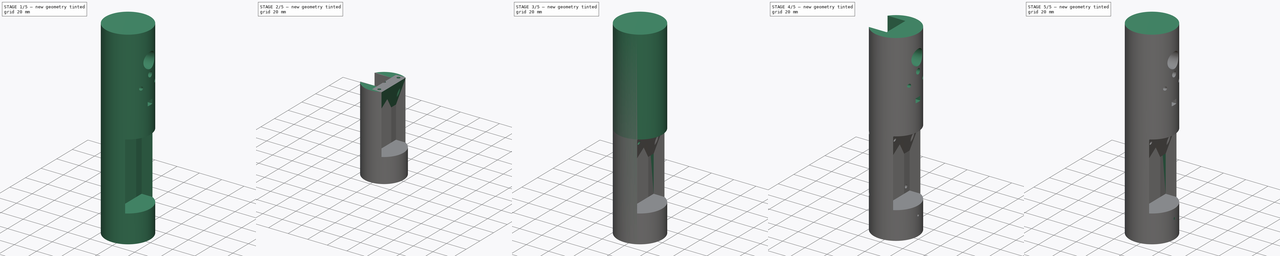
[diagram: build sequence overview — one tinted view per stage of 5, left to right]
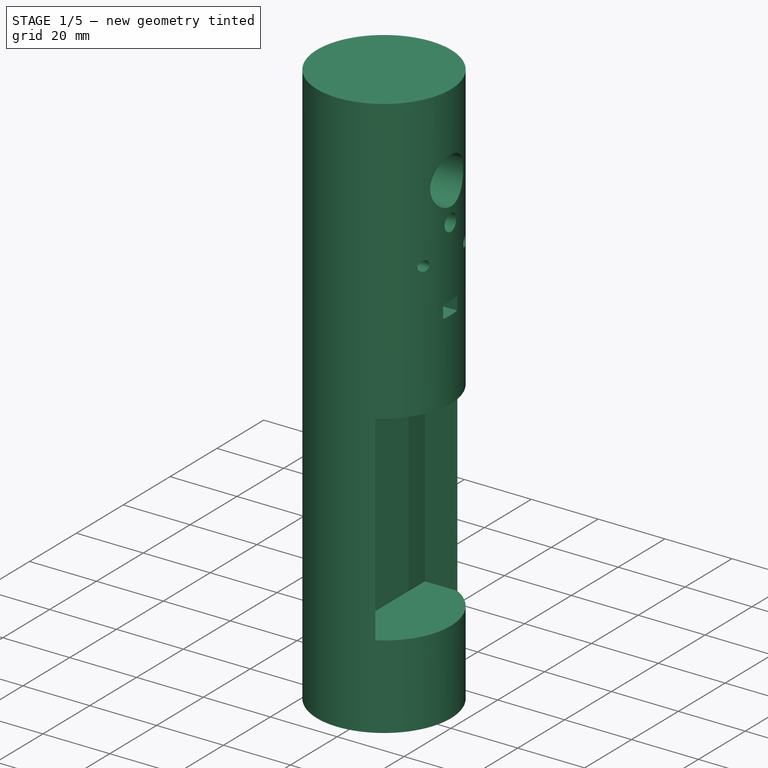
[diagram: stage 1 of 5 — iso view after this stage's code; geometry added in this stage tinted green]
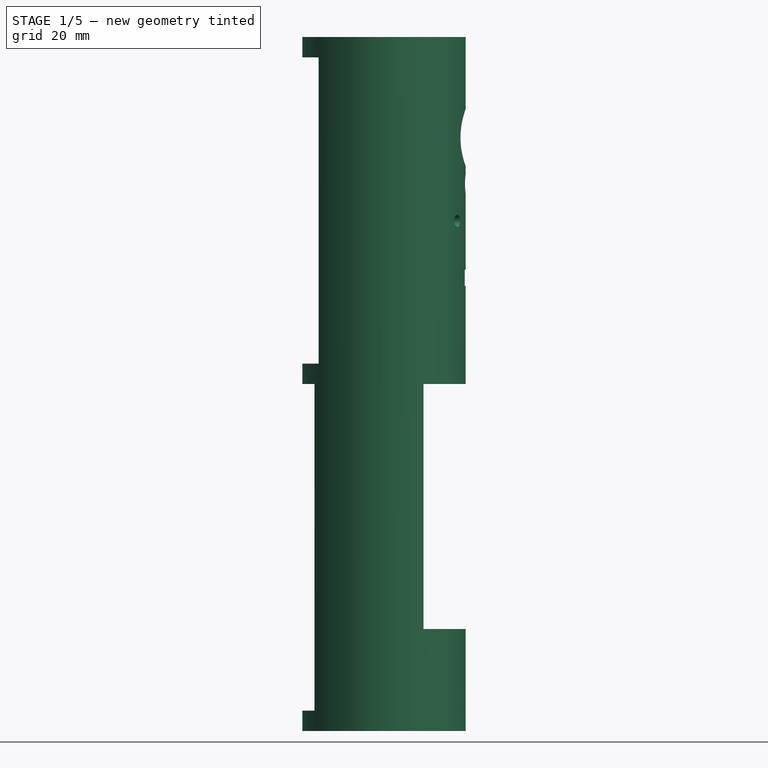
[diagram: stage 1 of 5 — front view after this stage's code; geometry added in this stage tinted green]
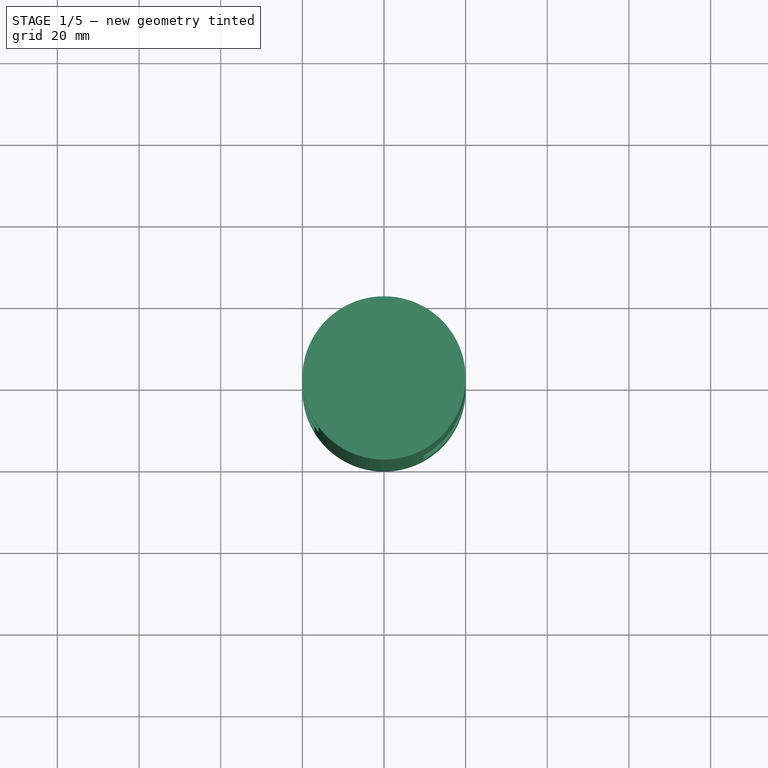
[diagram: stage 1 of 5 — top view after this stage's code; geometry added in this stage tinted green]
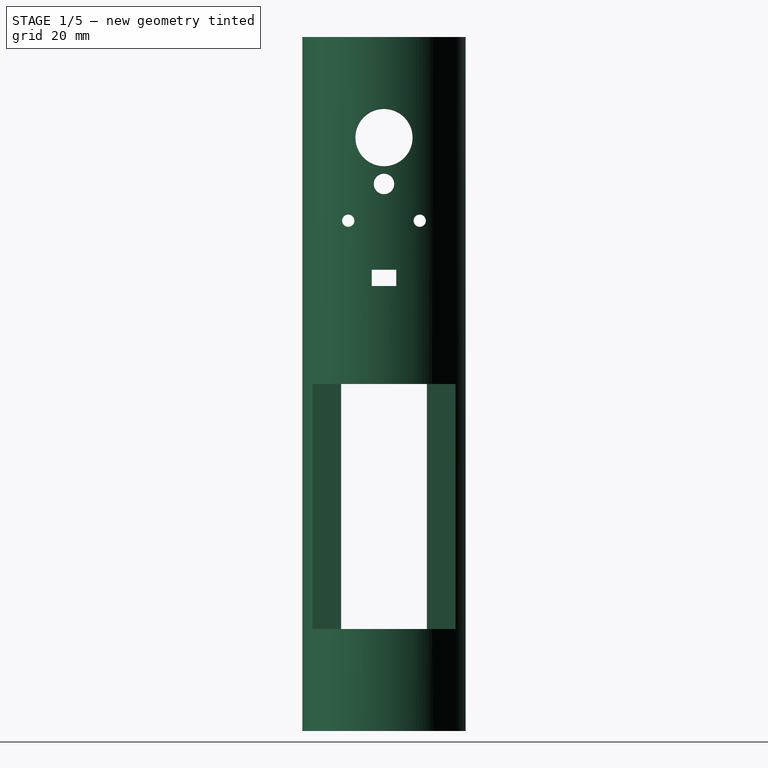
[diagram: stage 1 of 5 — right view after this stage's code; geometry added in this stage tinted green]
FCSTD DOCUMENT  (FreeCAD 0.18.4R)
Label: screwdriver_body
License: All rights reserved
LicenseURL: http://en.wikipedia.org/wiki/All_rights_reserved
objects: Sketcher::SketchObject×26, PartDesign::Pocket×19, PartDesign::Pad×4, PartDesign::Body×3
note: 75 computed .brp shape members not serialized (recipe doc carries the construction recipe); baked Part::Feature solids carry a one-line shape summary decoded from their .brp

FEATURE [PartDesign::Body] Body001  label="part-motor"
  Group = -> [Sketch006,Sketch007,Pad001,Sketch008,Pocket004,Sketch009,Pocket005,Sketch010,Pocket006,Sketch011,Pocket007,Sketch012,Pocket008,Sketch013,Pocket009]
  Origin = -> Origin001
  Tip = -> Pocket009
FEATURE [Sketcher::SketchObject] Sketch014  label="persegixy002"
  MapMode = 5
  Support = -> [XY_Plane002]
  sketch-geometry (4):
    g0: LineSegment StartX=-17.0798 StartY=8.27511 StartZ=0 EndX=17.0798 EndY=8.27511 EndZ=0
    g1: LineSegment StartX=17.0798 StartY=8.27511 StartZ=0 EndX=17.0798 EndY=-8.27511 EndZ=0
    g2: LineSegment StartX=17.0798 StartY=-8.27511 StartZ=0 EndX=-17.0798 EndY=-8.27511 EndZ=0
    g3: LineSegment StartX=-17.0798 StartY=-8.27511 StartZ=0 EndX=-17.0798 EndY=8.27511 EndZ=0
  constraints (8):
    c: Coincident(g0,g1)
    c: Coincident(g1,g2)
    c: Coincident(g2,g3)
    c: Coincident(g3,g0)
    c: Horizontal(g0)
    c: Vertical(g3)
    c: Symmetric(g0,g1,g-1)
    c: Symmetric(g2,g1,g-2)
FEATURE [Sketcher::SketchObject] Sketch015
  MapMode = 5
  Support = -> [XY_Plane002]
  sketch-geometry (1):
    g0: Circle CenterX=0 CenterY=0 CenterZ=0 NormalX=0 NormalY=0 NormalZ=1 AngleXU=0 Radius=20
  constraints (2):
    c: Coincident(g0,g-1)
    c: Diameter(g0) = 40
FEATURE [PartDesign::Pad] Pad002  label="mainbody002"
  Length = 170
  Length2 = 100
  Profile = -> Sketch015
  Type = 0
FEATURE [Sketcher::SketchObject] Sketch016
  MapMode = 5
  Placement = pos=(0,0,0) rot=(0.57735,0.57735,0.57735;2.0944rad)
  Support = -> [YZ_Plane002]
  sketch-geometry (4):
    g0: LineSegment StartX=-10.5 StartY=85 StartZ=0 EndX=10.5 EndY=85 EndZ=0
    g1: LineSegment StartX=10.5 StartY=85 StartZ=0 EndX=10.5 EndY=5 EndZ=0
    g2: LineSegment StartX=10.5 StartY=5 StartZ=0 EndX=-10.5 EndY=5 EndZ=0
    g3: LineSegment StartX=-10.5 StartY=5 StartZ=0 EndX=-10.5 EndY=85 EndZ=0
  constraints (11):
    c: Coincident(g0,g1)
    c: Coincident(g1,g2)
    c: Coincident(g2,g3)
    c: Coincident(g3,g0)
    c: Horizontal(g0)
    c: Vertical(g1)
    c: Vertical(g3)
    c: DistanceX(g0,g0) = 21
    c: DistanceY(g1,g1) = 80
    c: Symmetric(g1,g2,g-2)
    c: DistanceY(g-1,g1) = 5
FEATURE [PartDesign::Pocket] Pocket010  label="pocketbattery002"
  BaseFeature = -> Pad002
  Length = 5
  Length2 = 100
  Profile = -> Sketch016
  Type = 1
FEATURE [Sketcher::SketchObject] Sketch017
  MapMode = 5
  Placement = pos=(0,0,0) rot=(0.57735,0.57735,0.57735;2.0944rad)
  Support = -> [YZ_Plane002]
  sketch-geometry (4):
    g0: LineSegment StartX=-17.5 StartY=25 StartZ=0 EndX=17.5 EndY=25 EndZ=0
    g1: LineSegment StartX=17.5 StartY=25 StartZ=0 EndX=17.5 EndY=85 EndZ=0
    g2: LineSegment StartX=17.5 StartY=85 StartZ=0 EndX=-17.5 EndY=85 EndZ=0
    g3: LineSegment StartX=-17.5 StartY=85 StartZ=0 EndX=-17.5 EndY=25 EndZ=0
  constraints (11):
    c: Coincident(g0,g1)
    c: Coincident(g1,g2)
    c: Coincident(g2,g3)
    c: Coincident(g3,g0)
    c: Horizontal(g2)
    c: Vertical(g1)
    c: Vertical(g3)
    c: Symmetric(g0,g0,g-2)
    c: DistanceX(g0,g0) = 35
    c: DistanceY(g3,g3) = 60
    c: DistanceY(g-1,g1) = 85
FEATURE [PartDesign::Pocket] Pocket011  label="pocketelectronics002"
  BaseFeature = -> Pocket010
  Length = 5
  Length2 = 100
  Profile = -> Sketch017
  Reversed = true
  Type = 1
FEATURE [Sketcher::SketchObject] Sketch018
  MapMode = 5
  Placement = pos=(0,0,0) rot=(0.57735,0.57735,0.57735;2.0944rad)
  Support = -> [YZ_Plane002]
  sketch-geometry (4):
    g0: LineSegment StartX=-12 StartY=90 StartZ=0 EndX=12 EndY=90 EndZ=0
    g1: LineSegment StartX=12 StartY=90 StartZ=0 EndX=12 EndY=165 EndZ=0
    g2: LineSegment StartX=12 StartY=165 StartZ=0 EndX=-12 EndY=165 EndZ=0
    g3: LineSegment StartX=-12 StartY=165 StartZ=0 EndX=-12 EndY=90 EndZ=0
  constraints (11):
    c: Coincident(g0,g1)
    c: Coincident(g1,g2)
    c: Coincident(g2,g3)
    c: Coincident(g3,g0)
    c: Horizontal(g0)
    c: Vertical(g1)
    c: Vertical(g3)
    c: Symmetric(g1,g2,g-2)
    c: DistanceX(g2,g2) = 24
    c: DistanceY(g1,g1) = 75
    c: DistanceY(g-1,g0) = 90
FEATURE [PartDesign::Pocket] Pocket012  label="pocketmotor002"
  BaseFeature = -> Pocket011
  Length = 5
  Length2 = 100
  Profile = -> Sketch018
  Type = 1
FEATURE [Sketcher::SketchObject] Sketch019
  MapMode = 5
  Placement = pos=(-3e-16,0,0) rot=(-0.57735,0.57735,0.57735;4.18879rad)
  Support = -> [Pocket012]
  sketch-geometry (9):
    g0: Circle CenterX=8.75 CenterY=125 CenterZ=0 NormalX=0 NormalY=0 NormalZ=1 AngleXU=0 Radius=1.5
    g1: Circle CenterX=-8.75 CenterY=125 CenterZ=0 NormalX=0 NormalY=0 NormalZ=1 AngleXU=0 Radius=1.5
    g2: LineSegment [constr] StartX=26 StartY=90 StartZ=0 EndX=26 EndY=0 EndZ=0
    g3: Circle CenterX=0 CenterY=145.35 CenterZ=0 NormalX=0 NormalY=0 NormalZ=1 AngleXU=0 Radius=7
    g4: Circle CenterX=0 CenterY=134 CenterZ=0 NormalX=0 NormalY=0 NormalZ=1 AngleXU=0 Radius=2.5
    g5: LineSegment StartX=-3 StartY=113 StartZ=0 EndX=3 EndY=113 EndZ=0
    g6: LineSegment StartX=3 StartY=113 StartZ=0 EndX=3 EndY=109 EndZ=0
    g7: LineSegment StartX=3 StartY=109 StartZ=0 EndX=-3 EndY=109 EndZ=0
    g8: LineSegment StartX=-3 StartY=109 StartZ=0 EndX=-3 EndY=113 EndZ=0
  constraints (25):
    c: Symmetric(g1,g0,g-2)
    c: Diameter(g1) = 3
    c: Equal(g1,g0)
    c: DistanceX(g1,g0) = 17.5
    c: Vertical(g2)
    c: PointOnObject(g2,g-1)
    c: DistanceY(g2,g2) = 90
    c: DistanceY(g2,g0) = 35
    c: PointOnObject(g3,g-2)
    c: Diameter(g3) = 14
    c: DistanceY(g0,g3) = 20.35
    c: PointOnObject(g4,g-2)
    c: Diameter(g4) = 5
    c: DistanceY(g0,g4) = 9
    c: Coincident(g5,g6)
    c: Coincident(g6,g7)
    c: Coincident(g7,g8)
    c: Coincident(g8,g5)
    c: Horizontal(g7)
    c: Vertical(g6)
    c: Vertical(g8)
    c: Symmetric(g5,g5,g-2)
    c: DistanceX(g5,g5) = 6
    c: DistanceY(g6,g6) = 4
    c: DistanceY(g5,g0) = 12
FEATURE [PartDesign::Pocket] Pocket013  label="pocketmotorscrew002"
  BaseFeature = -> Pocket012
  Length = 5
  Length2 = 100
  Profile = -> Sketch019
  Type = 1
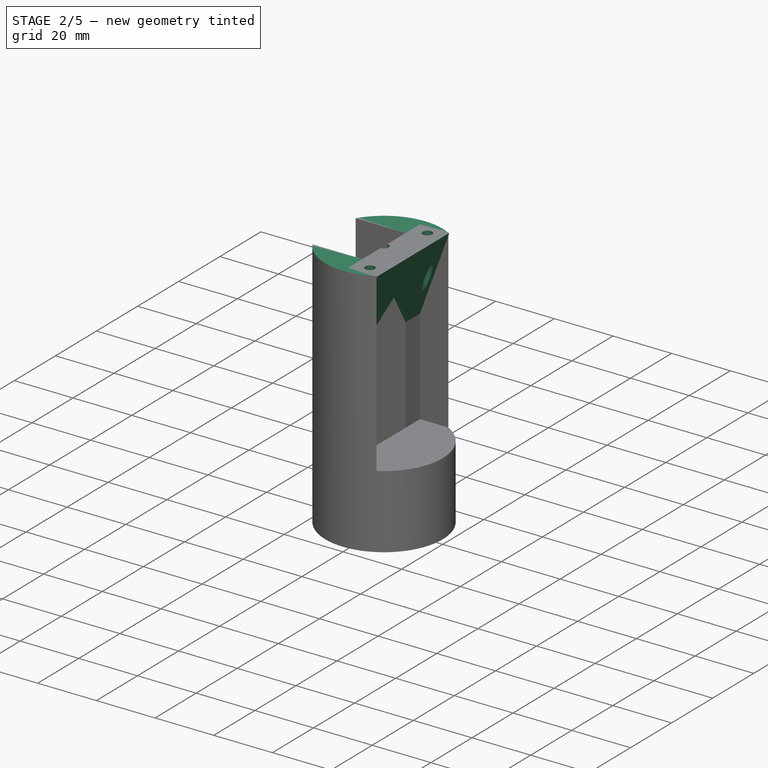
[diagram: stage 2 of 5 — iso view after this stage's code; geometry added in this stage tinted green]
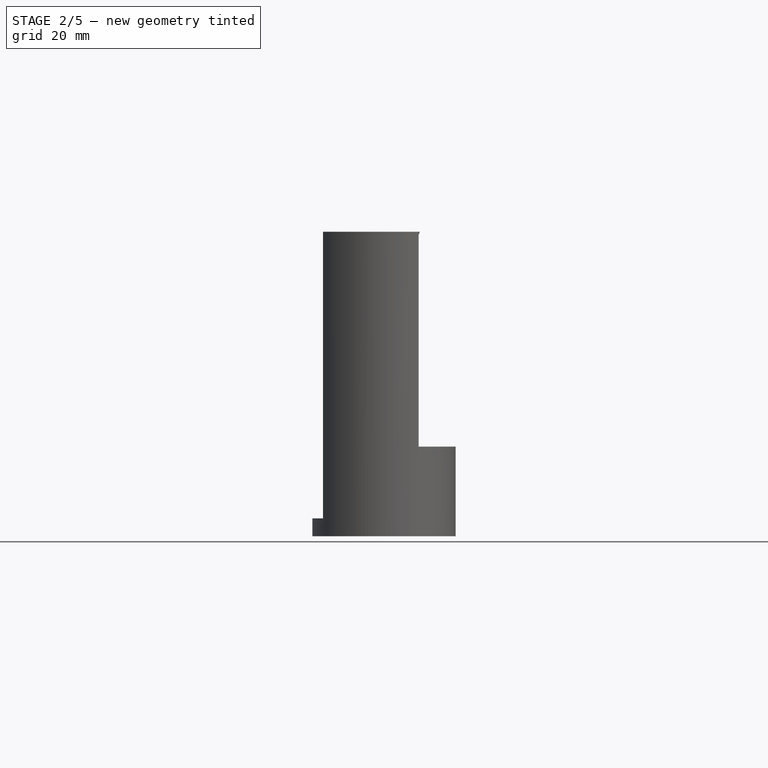
[diagram: stage 2 of 5 — front view after this stage's code; geometry added in this stage tinted green]
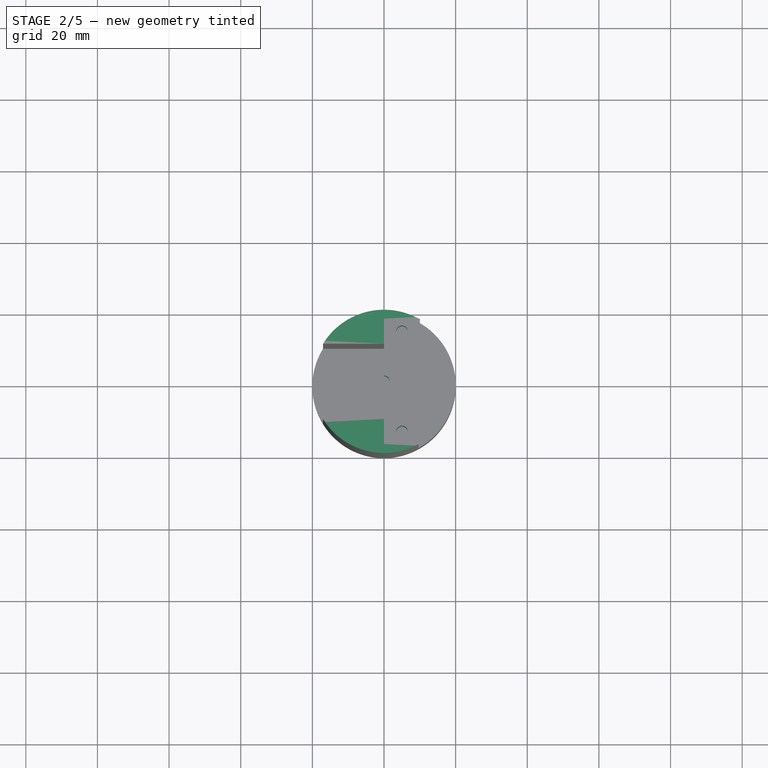
[diagram: stage 2 of 5 — top view after this stage's code; geometry added in this stage tinted green]
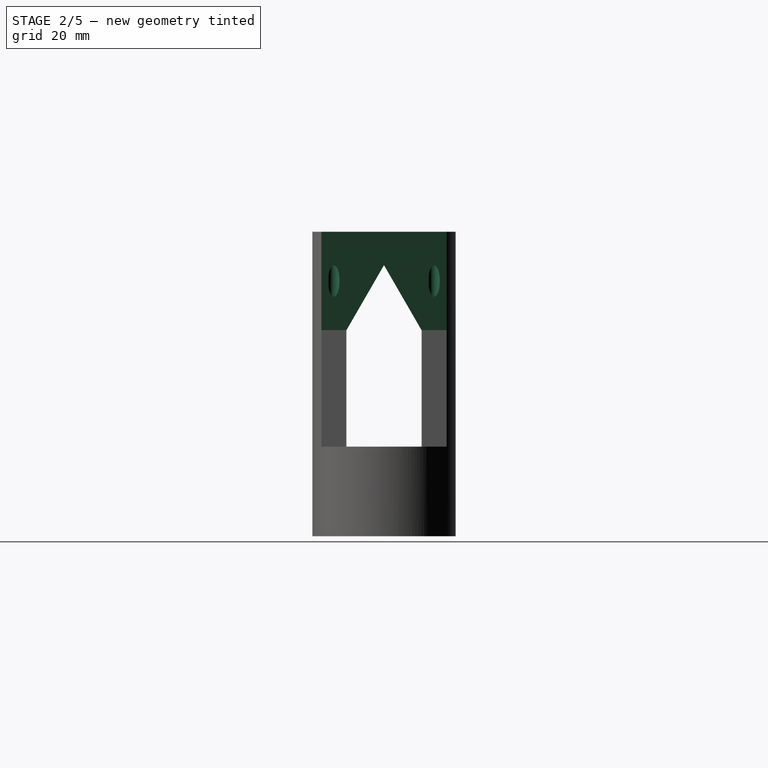
[diagram: stage 2 of 5 — right view after this stage's code; geometry added in this stage tinted green]
FEATURE [Sketcher::SketchObject] Sketch020
  MapMode = 5
  Placement = pos=(0,0,0) rot=(0.57735,0.57735,0.57735;2.0944rad)
  Support = -> [YZ_Plane002]
  sketch-geometry (4):
    g0: LineSegment StartX=-22 StartY=85 StartZ=0 EndX=23 EndY=85 EndZ=0
    g1: LineSegment StartX=23 StartY=85 StartZ=0 EndX=23 EndY=172 EndZ=0
    g2: LineSegment StartX=23 StartY=172 StartZ=0 EndX=-22 EndY=172 EndZ=0
    g3: LineSegment StartX=-22 StartY=172 StartZ=0 EndX=-22 EndY=85 EndZ=0
  constraints (8):
    c: Coincident(g0,g1)
    c: Coincident(g1,g2)
    c: Coincident(g2,g3)
    c: Coincident(g3,g0)
    c: Horizontal(g0)
    c: Horizontal(g2)
    c: Vertical(g1)
    c: Vertical(g3)
FEATURE [PartDesign::Pocket] Pocket014  label="deleter001"
  BaseFeature = -> Pocket013
  Length = 50
  Length2 = 50
  Profile = -> Sketch020
  Type = 4
FEATURE [Sketcher::SketchObject] Sketch021
  MapMode = 5
  Placement = pos=(-3.8e-15,-17.5,3.8e-15) rot=(0,0.707107,0.707107;3.14159rad)
  Support = -> [Pocket014]
  sketch-geometry (3):
    g0: LineSegment StartX=-10 StartY=85 StartZ=0 EndX=0 EndY=57.5252 EndZ=0
    g1: LineSegment StartX=0 StartY=57.5252 StartZ=0 EndX=0 EndY=85 EndZ=0
    g2: LineSegment StartX=0 StartY=85 StartZ=0 EndX=-10 EndY=85 EndZ=0
  constraints (9):
    c: PointOnObject(g0,g-2)
    c: Coincident(g0,g1)
    c: PointOnObject(g1,g-2)
    c: Coincident(g1,g2)
    c: Coincident(g2,g0)
    c: Horizontal(g2)
    c: Angle(g1,g0) = 0.349066
    c: DistanceX(g2,g2) = 10
    c: DistanceY(g-1,g0) = 85
FEATURE [PartDesign::Pad] Pad003  label="overhangscrewplace"
  BaseFeature = -> Pocket014
  Length = 35
  Length2 = 100
  Profile = -> Sketch021
  Type = 0
FEATURE [Sketcher::SketchObject] Sketch022
  MapMode = 5
  Placement = pos=(0,0,0) rot=(-0.57735,0.57735,0.57735;4.18879rad)
  Support = -> [Pad003]
  sketch-geometry (3):
    g0: LineSegment StartX=-10.5 StartY=57.5 StartZ=0 EndX=10.5 EndY=57.5 EndZ=0
    g1: LineSegment StartX=10.5 StartY=57.5 StartZ=0 EndX=0 EndY=75.6865 EndZ=0
    g2: LineSegment StartX=0 StartY=75.6865 StartZ=0 EndX=-10.5 EndY=57.5 EndZ=0
  constraints (8):
    c: Coincident(g0,g1)
    c: Coincident(g1,g2)
    c: Coincident(g2,g0)
    c: Symmetric(g0,g0,g-2)
    c: DistanceX(g0,g0) = 21
    c: PointOnObject(g1,g-2)
    c: Angle(g1,g0) = 1.0472
    c: DistanceY(g-1,g0) = 57.5
FEATURE [PartDesign::Pocket] Pocket015  label="overhangmeta"
  BaseFeature = -> Pad003
  Length = 5
  Length2 = 100
  Profile = -> Sketch022
  Type = 1
FEATURE [Sketcher::SketchObject] Sketch023
  MapMode = 5
  Placement = pos=(0,1.89e-14,85) rot=(0,0,1;0rad)
  Support = -> [Pocket015]
  sketch-geometry (3):
    g0: Circle CenterX=5 CenterY=14 CenterZ=0 NormalX=0 NormalY=0 NormalZ=1 AngleXU=0 Radius=1.6
    g1: Circle CenterX=5 CenterY=-14 CenterZ=0 NormalX=0 NormalY=0 NormalZ=1 AngleXU=0 Radius=1.6
    g2: Circle CenterX=0 CenterY=0 CenterZ=0 NormalX=0 NormalY=0 NormalZ=1 AngleXU=0 Radius=1.6
  constraints (7):
    c: DistanceY(g1,g0) = 28
    c: Diameter(g0) = 3.2
    c: Equal(g0,g1)
    c: Symmetric(g0,g1,g-1)
    c: DistanceX(g-1,g0) = 5
    c: Coincident(g2,g-1)
    c: Diameter(g2) = 3.2
FEATURE [PartDesign::Pocket] Pocket016  label="sekrupatas"
  BaseFeature = -> Pocket015
  Length = 20
  Length2 = 100
  Profile = -> Sketch023
  Type = 0
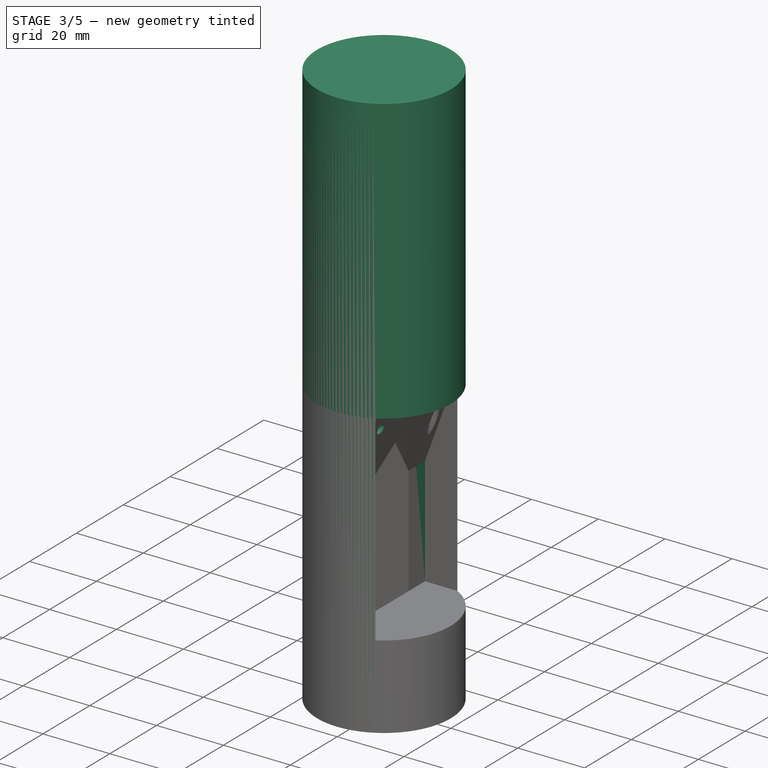
[diagram: stage 3 of 5 — iso view after this stage's code; geometry added in this stage tinted green]
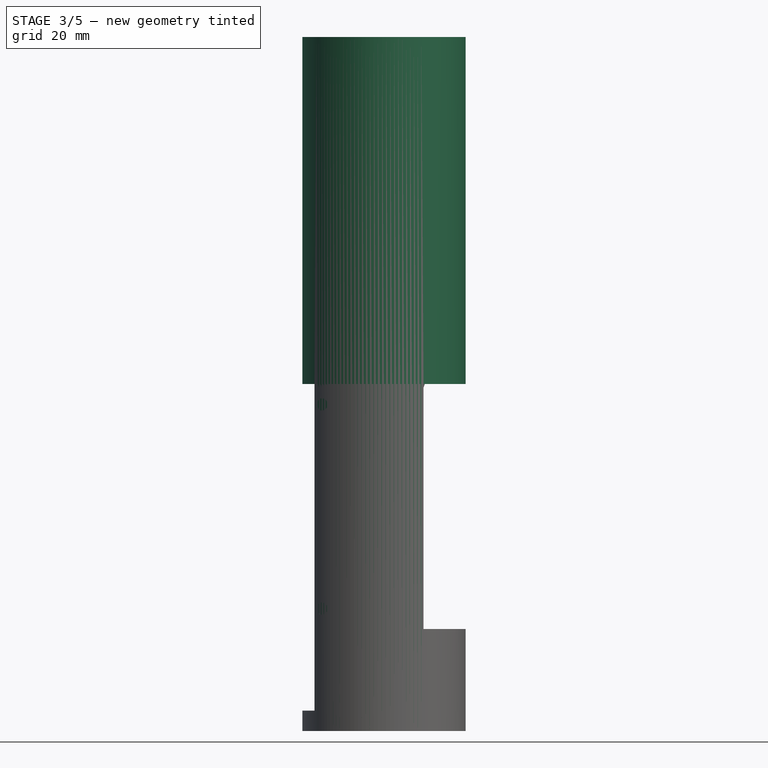
[diagram: stage 3 of 5 — front view after this stage's code; geometry added in this stage tinted green]
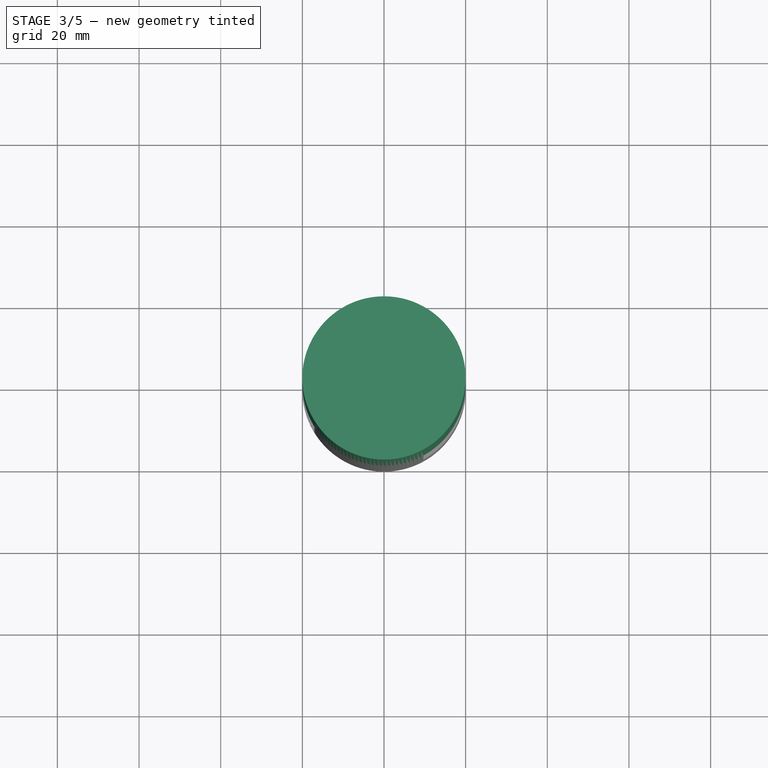
[diagram: stage 3 of 5 — top view after this stage's code; geometry added in this stage tinted green]
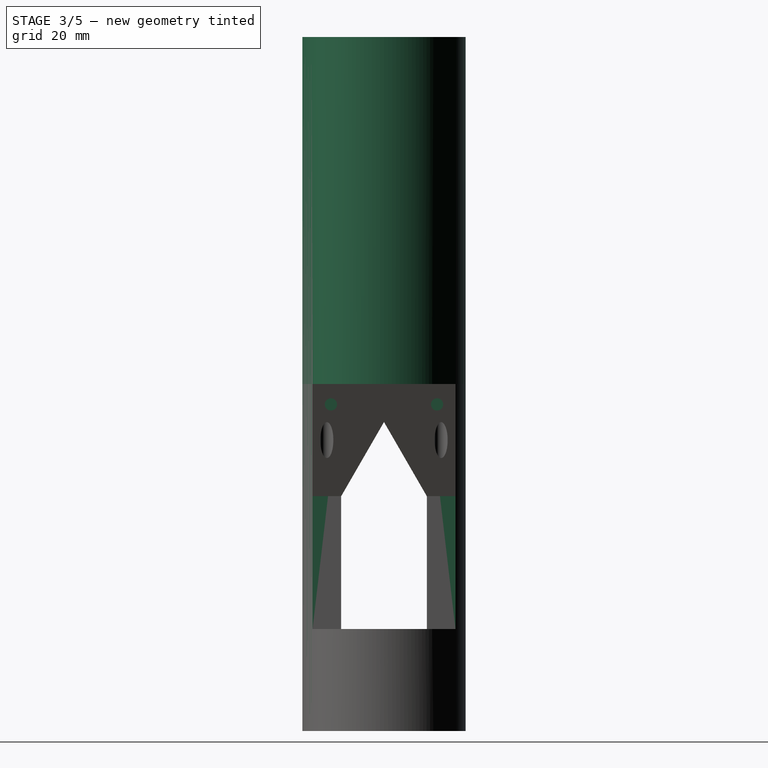
[diagram: stage 3 of 5 — right view after this stage's code; geometry added in this stage tinted green]
FEATURE [PartDesign::Body] Body
  Group = -> [Sketch,Sketch001,Pad,Sketch002,Pocket,Sketch003,Pocket001,Sketch004,Pocket002,Sketch005,Pocket003]
  Origin = -> Origin
  Tip = -> Pocket003
FEATURE [Sketcher::SketchObject] Sketch006  label="persegixy001"
  MapMode = 5
  Support = -> [XY_Plane001]
  sketch-geometry (4):
    g0: LineSegment StartX=-17.0798 StartY=8.27511 StartZ=0 EndX=17.0798 EndY=8.27511 EndZ=0
    g1: LineSegment StartX=17.0798 StartY=8.27511 StartZ=0 EndX=17.0798 EndY=-8.27511 EndZ=0
    g2: LineSegment StartX=17.0798 StartY=-8.27511 StartZ=0 EndX=-17.0798 EndY=-8.27511 EndZ=0
    g3: LineSegment StartX=-17.0798 StartY=-8.27511 StartZ=0 EndX=-17.0798 EndY=8.27511 EndZ=0
  constraints (8):
    c: Coincident(g0,g1)
    c: Coincident(g1,g2)
    c: Coincident(g2,g3)
    c: Coincident(g3,g0)
    c: Horizontal(g0)
    c: Vertical(g3)
    c: Symmetric(g0,g1,g-1)
    c: Symmetric(g2,g1,g-2)
FEATURE [Sketcher::SketchObject] Sketch007
  MapMode = 5
  Support = -> [XY_Plane001]
  sketch-geometry (1):
    g0: Circle CenterX=0 CenterY=0 CenterZ=0 NormalX=0 NormalY=0 NormalZ=1 AngleXU=0 Radius=20
  constraints (2):
    c: Coincident(g0,g-1)
    c: Diameter(g0) = 40
FEATURE [PartDesign::Pad] Pad001  label="mainbody001"
  Length = 170
  Length2 = 100
  Profile = -> Sketch007
  Type = 0
FEATURE [Sketcher::SketchObject] Sketch008
  MapMode = 5
  Placement = pos=(0,0,0) rot=(0.57735,0.57735,0.57735;2.0944rad)
  Support = -> [YZ_Plane001]
  sketch-geometry (4):
    g0: LineSegment StartX=-10.5 StartY=85 StartZ=0 EndX=10.5 EndY=85 EndZ=0
    g1: LineSegment StartX=10.5 StartY=85 StartZ=0 EndX=10.5 EndY=5 EndZ=0
    g2: LineSegment StartX=10.5 StartY=5 StartZ=0 EndX=-10.5 EndY=5 EndZ=0
    g3: LineSegment StartX=-10.5 StartY=5 StartZ=0 EndX=-10.5 EndY=85 EndZ=0
  constraints (11):
    c: Coincident(g0,g1)
    c: Coincident(g1,g2)
    c: Coincident(g2,g3)
    c: Coincident(g3,g0)
    c: Horizontal(g0)
    c: Vertical(g1)
    c: Vertical(g3)
    c: DistanceX(g0,g0) = 21
    c: DistanceY(g1,g1) = 80
    c: Symmetric(g1,g2,g-2)
    c: DistanceY(g-1,g1) = 5
FEATURE [PartDesign::Pocket] Pocket004  label="pocketbattery001"
  BaseFeature = -> Pad001
  Length = 5
  Length2 = 100
  Profile = -> Sketch008
  Type = 1
FEATURE [Sketcher::SketchObject] Sketch009
  MapMode = 5
  Placement = pos=(0,0,0) rot=(0.57735,0.57735,0.57735;2.0944rad)
  Support = -> [YZ_Plane001]
  sketch-geometry (4):
    g0: LineSegment StartX=-17.5 StartY=25 StartZ=0 EndX=17.5 EndY=25 EndZ=0
    g1: LineSegment StartX=17.5 StartY=25 StartZ=0 EndX=17.5 EndY=85 EndZ=0
    g2: LineSegment StartX=17.5 StartY=85 StartZ=0 EndX=-17.5 EndY=85 EndZ=0
    g3: LineSegment StartX=-17.5 StartY=85 StartZ=0 EndX=-17.5 EndY=25 EndZ=0
  constraints (11):
    c: Coincident(g0,g1)
    c: Coincident(g1,g2)
    c: Coincident(g2,g3)
    c: Coincident(g3,g0)
    c: Horizontal(g2)
    c: Vertical(g1)
    c: Vertical(g3)
    c: Symmetric(g0,g0,g-2)
    c: DistanceX(g0,g0) = 35
    c: DistanceY(g3,g3) = 60
    c: DistanceY(g-1,g1) = 85
FEATURE [PartDesign::Pocket] Pocket005  label="pocketelectronics001"
  BaseFeature = -> Pocket004
  Length = 5
  Length2 = 100
  Profile = -> Sketch009
  Reversed = true
  Type = 1
FEATURE [Sketcher::SketchObject] Sketch024
  MapMode = 5
  Placement = pos=(-1e-16,0,0) rot=(-0.57735,0.57735,0.57735;4.18879rad)
  Support = -> [Pocket016]
  sketch-geometry (1):
    g0: Circle CenterX=0 CenterY=17 CenterZ=0 NormalX=0 NormalY=0 NormalZ=1 AngleXU=0 Radius=1
  constraints (3):
    c: PointOnObject(g0,g-2)
    c: Diameter(g0) = 2
    c: DistanceY(g-1,g0) = 17
FEATURE [PartDesign::Pocket] Pocket017  label="sekrupbatre"
  BaseFeature = -> Pocket016
  Length = 5
  Length2 = 100
  Profile = -> Sketch024
  Type = 1
FEATURE [Sketcher::SketchObject] Sketch025
  MapMode = 5
  Placement = pos=(-1e-16,0,0) rot=(0.57735,0.57735,0.57735;2.0944rad)
  Support = -> [Pocket017]
  sketch-geometry (4):
    g0: Circle CenterX=-13 CenterY=30 CenterZ=0 NormalX=0 NormalY=0 NormalZ=1 AngleXU=0 Radius=1.5
    g1: Circle CenterX=13 CenterY=30 CenterZ=0 NormalX=0 NormalY=0 NormalZ=1 AngleXU=0 Radius=1.5
    g2: Circle CenterX=-13 CenterY=80 CenterZ=0 NormalX=0 NormalY=0 NormalZ=1 AngleXU=0 Radius=1.5
    g3: Circle CenterX=13 CenterY=80 CenterZ=0 NormalX=0 NormalY=0 NormalZ=1 AngleXU=0 Radius=1.5
  constraints (10):
    c: Diameter(g1) = 3
    c: Equal(g1,g0)
    c: Symmetric(g0,g1,g-2)
    c: DistanceX(g0,g1) = 26
    c: DistanceY(g-1,g0) = 30
    c: Symmetric(g3,g2,g-2)
    c: Diameter(g2) = 3
    c: Equal(g2,g3)
    c: DistanceX(g2,g3) = 26
    c: DistanceY(g0,g2) = 50
FEATURE [PartDesign::Pocket] Pocket018  label="sekrupelect"
  BaseFeature = -> Pocket017
  Length = 50
  Length2 = 50
  Profile = -> Sketch025
  Type = 4
FEATURE [PartDesign::Body] Body002
  Group = -> [Sketch014,Sketch015,Pad002,Sketch016,Pocket010,Sketch017,Pocket011,Sketch018,Pocket012,Sketch019,Pocket013,Sketch020,Pocket014,Sketch021,Pad003,Sketch022,Pocket015,Sketch023,Pocket016,Sketch024,Pocket017,Sketch025,Pocket018]
  Origin = -> Origin002
  Tip = -> Pocket018
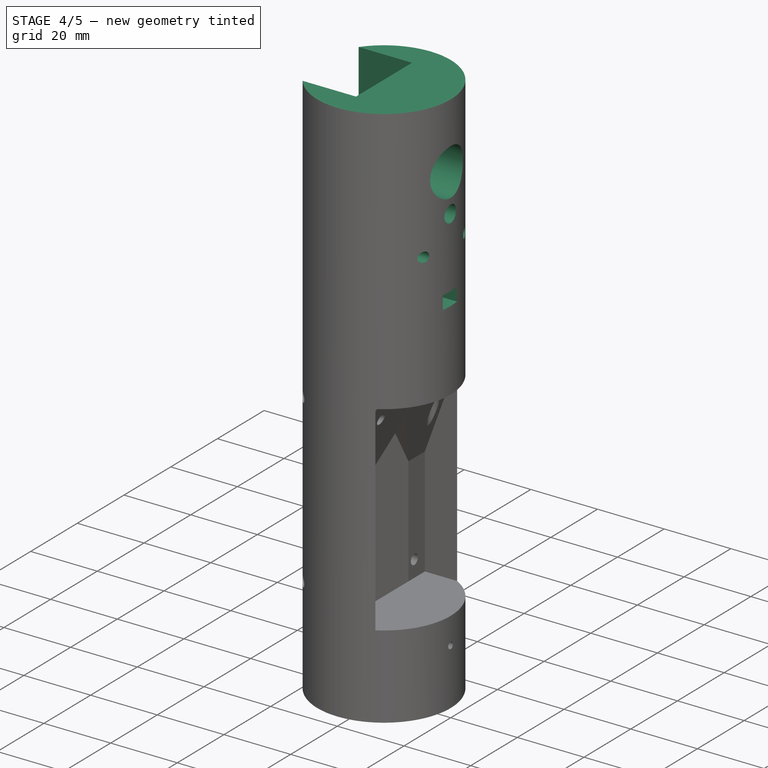
[diagram: stage 4 of 5 — iso view after this stage's code; geometry added in this stage tinted green]
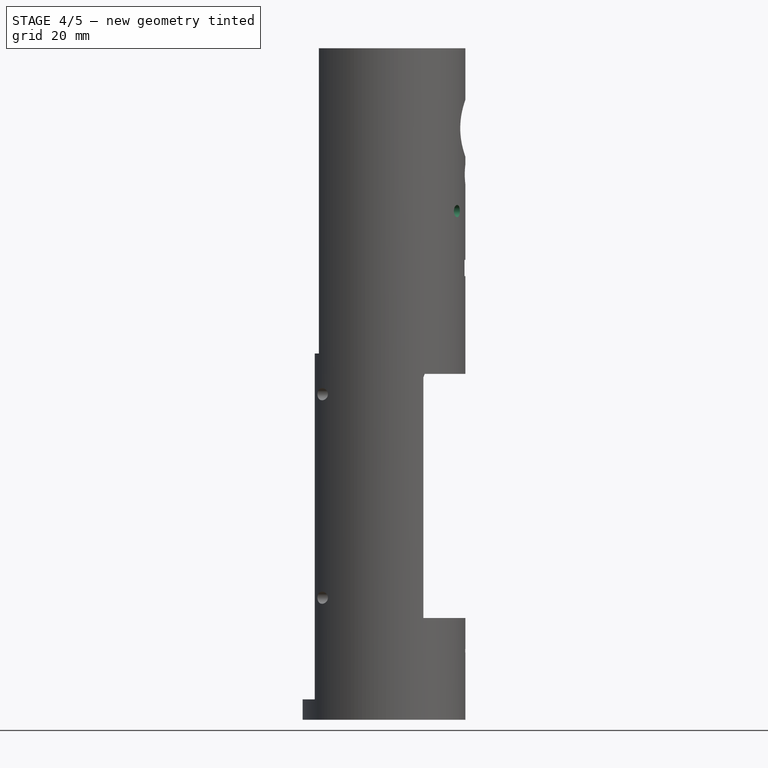
[diagram: stage 4 of 5 — front view after this stage's code; geometry added in this stage tinted green]
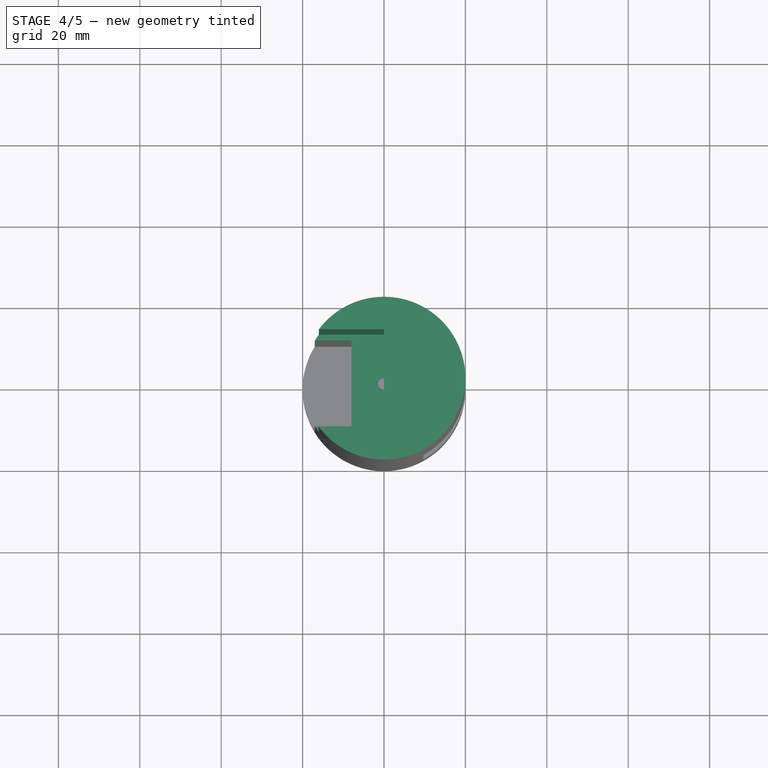
[diagram: stage 4 of 5 — top view after this stage's code; geometry added in this stage tinted green]
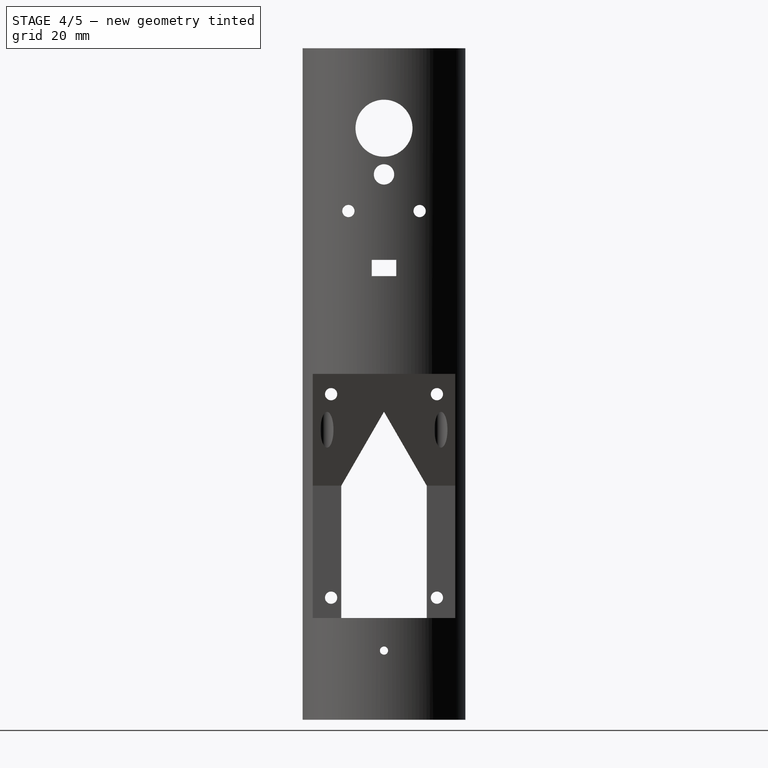
[diagram: stage 4 of 5 — right view after this stage's code; geometry added in this stage tinted green]
FEATURE [Sketcher::SketchObject] Sketch010
  MapMode = 5
  Placement = pos=(0,0,0) rot=(0.57735,0.57735,0.57735;2.0944rad)
  Support = -> [YZ_Plane001]
  sketch-geometry (4):
    g0: LineSegment StartX=-12 StartY=90 StartZ=0 EndX=12 EndY=90 EndZ=0
    g1: LineSegment StartX=12 StartY=90 StartZ=0 EndX=12 EndY=165 EndZ=0
    g2: LineSegment StartX=12 StartY=165 StartZ=0 EndX=-12 EndY=165 EndZ=0
    g3: LineSegment StartX=-12 StartY=165 StartZ=0 EndX=-12 EndY=90 EndZ=0
  constraints (11):
    c: Coincident(g0,g1)
    c: Coincident(g1,g2)
    c: Coincident(g2,g3)
    c: Coincident(g3,g0)
    c: Horizontal(g0)
    c: Vertical(g1)
    c: Vertical(g3)
    c: Symmetric(g1,g2,g-2)
    c: DistanceX(g2,g2) = 24
    c: DistanceY(g1,g1) = 75
    c: DistanceY(g-1,g0) = 90
FEATURE [PartDesign::Pocket] Pocket006  label="pocketmotor001"
  BaseFeature = -> Pocket005
  Length = 5
  Length2 = 100
  Profile = -> Sketch010
  Type = 1
FEATURE [Sketcher::SketchObject] Sketch011
  MapMode = 5
  Placement = pos=(-3e-16,0,0) rot=(-0.57735,0.57735,0.57735;4.18879rad)
  Support = -> [Pocket006]
  sketch-geometry (9):
    g0: Circle CenterX=8.75 CenterY=125 CenterZ=0 NormalX=0 NormalY=0 NormalZ=1 AngleXU=0 Radius=1.5
    g1: Circle CenterX=-8.75 CenterY=125 CenterZ=0 NormalX=0 NormalY=0 NormalZ=1 AngleXU=0 Radius=1.5
    g2: LineSegment [constr] StartX=26 StartY=90 StartZ=0 EndX=26 EndY=0 EndZ=0
    g3: Circle CenterX=0 CenterY=145.35 CenterZ=0 NormalX=0 NormalY=0 NormalZ=1 AngleXU=0 Radius=7
    g4: Circle CenterX=0 CenterY=134 CenterZ=0 NormalX=0 NormalY=0 NormalZ=1 AngleXU=0 Radius=2.5
    g5: LineSegment StartX=-3 StartY=113 StartZ=0 EndX=3 EndY=113 EndZ=0
    g6: LineSegment StartX=3 StartY=113 StartZ=0 EndX=3 EndY=109 EndZ=0
    g7: LineSegment StartX=3 StartY=109 StartZ=0 EndX=-3 EndY=109 EndZ=0
    g8: LineSegment StartX=-3 StartY=109 StartZ=0 EndX=-3 EndY=113 EndZ=0
  constraints (25):
    c: Symmetric(g1,g0,g-2)
    c: Diameter(g1) = 3
    c: Equal(g1,g0)
    c: DistanceX(g1,g0) = 17.5
    c: Vertical(g2)
    c: PointOnObject(g2,g-1)
    c: DistanceY(g2,g2) = 90
    c: DistanceY(g2,g0) = 35
    c: PointOnObject(g3,g-2)
    c: Diameter(g3) = 14
    c: DistanceY(g0,g3) = 20.35
    c: PointOnObject(g4,g-2)
    c: Diameter(g4) = 5
    c: DistanceY(g0,g4) = 9
    c: Coincident(g5,g6)
    c: Coincident(g6,g7)
    c: Coincident(g7,g8)
    c: Coincident(g8,g5)
    c: Horizontal(g7)
    c: Vertical(g6)
    c: Vertical(g8)
    c: Symmetric(g5,g5,g-2)
    c: DistanceX(g5,g5) = 6
    c: DistanceY(g6,g6) = 4
    c: DistanceY(g5,g0) = 12
FEATURE [PartDesign::Pocket] Pocket007  label="pocketmotorscrew001"
  BaseFeature = -> Pocket006
  Length = 5
  Length2 = 100
  Profile = -> Sketch011
  Type = 1
FEATURE [Sketcher::SketchObject] Sketch012
  MapMode = 5
  Placement = pos=(0,0,0) rot=(0.57735,0.57735,0.57735;2.0944rad)
  Support = -> [YZ_Plane001]
  sketch-geometry (8):
    g0: LineSegment StartX=-22 StartY=85 StartZ=0 EndX=22 EndY=85 EndZ=0
    g1: LineSegment StartX=22 StartY=85 StartZ=0 EndX=22 EndY=0 EndZ=0
    g2: LineSegment StartX=22 StartY=0 StartZ=0 EndX=-22 EndY=0 EndZ=0
    g3: LineSegment StartX=-22 StartY=0 StartZ=0 EndX=-22 EndY=85 EndZ=0
    g4: LineSegment StartX=-21 StartY=165 StartZ=0 EndX=21 EndY=165 EndZ=0
    g5: LineSegment StartX=21 StartY=165 StartZ=0 EndX=21 EndY=171 EndZ=0
    g6: LineSegment StartX=21 StartY=171 StartZ=0 EndX=-21 EndY=171 EndZ=0
    g7: LineSegment StartX=-21 StartY=171 StartZ=0 EndX=-21 EndY=165 EndZ=0
  constraints (17):
    c: Coincident(g0,g1)
    c: Coincident(g1,g2)
    c: Coincident(g2,g3)
    c: Coincident(g3,g0)
    c: Horizontal(g0)
    c: Horizontal(g2)
    c: Vertical(g1)
    c: Vertical(g3)
    c: PointOnObject(g1,g-1)
    c: Coincident(g4,g5)
    c: Coincident(g5,g6)
    c: Coincident(g6,g7)
    c: Coincident(g7,g4)
    c: Horizontal(g4)
    c: Horizontal(g6)
    c: Vertical(g5)
    c: Vertical(g7)
FEATURE [PartDesign::Pocket] Pocket008  label="deleter"
  BaseFeature = -> Pocket007
  Length = 50
  Length2 = 50
  Profile = -> Sketch012
  Type = 4
FEATURE [Sketcher::SketchObject] Sketch013
  MapMode = 5
  Placement = pos=(-2.38e-14,1.87e-14,85) rot=(1,0,0;3.14159rad)
  Support = -> [Pocket008]
  sketch-geometry (9):
    g0: Circle CenterX=-5 CenterY=14 CenterZ=0 NormalX=0 NormalY=0 NormalZ=1 AngleXU=0 Radius=1.45
    g1: Circle CenterX=5 CenterY=14 CenterZ=0 NormalX=0 NormalY=0 NormalZ=1 AngleXU=0 Radius=1.45
    g2: Circle CenterX=5 CenterY=-14 CenterZ=0 NormalX=0 NormalY=0 NormalZ=1 AngleXU=0 Radius=1.45
    g3: Circle CenterX=-5 CenterY=-14 CenterZ=0 NormalX=0 NormalY=0 NormalZ=1 AngleXU=0 Radius=1.45
    g4: Circle CenterX=0 CenterY=0 CenterZ=0 NormalX=0 NormalY=0 NormalZ=1 AngleXU=0 Radius=1.5
    g5: LineSegment StartX=-8 StartY=10.5 StartZ=0 EndX=-20 EndY=10.5 EndZ=0
    g6: LineSegment StartX=-20 StartY=10.5 StartZ=0 EndX=-20 EndY=-10.5 EndZ=0
    g7: LineSegment StartX=-20 StartY=-10.5 StartZ=0 EndX=-8 EndY=-10.5 EndZ=0
    g8: LineSegment StartX=-8 StartY=-10.5 StartZ=0 EndX=-8 EndY=10.5 EndZ=0
  constraints (22):
    c: Symmetric(g2,g3,g-2)
    c: Symmetric(g1,g0,g-2)
    c: Diameter(g1) = 2.9
    c: Equal(g1,g0)
    c: Equal(g1,g2)
    c: Equal(g1,g3)
    c: Coincident(g4,g-1)
    c: Diameter(g4) = 3
    c: Coincident(g5,g6)
    c: Coincident(g6,g7)
    c: Coincident(g7,g8)
    c: Coincident(g8,g5)
    c: Horizontal(g5)
    c: Horizontal(g7)
    c: Vertical(g6)
    c: DistanceY(g8,g8) = 21
    c: Symmetric(g5,g7,g-1)
    c: DistanceX(g5,g5) = 12
    c: DistanceX(g6,g-1) = 20
    c: DistanceX(g3,g2) = 10
    c: DistanceY(g2,g1) = 28
    c: Symmetric(g1,g2,g-1)
FEATURE [PartDesign::Pocket] Pocket009
  BaseFeature = -> Pocket008
  Length = 30
  Length2 = 100
  Profile = -> Sketch013
  Type = 0
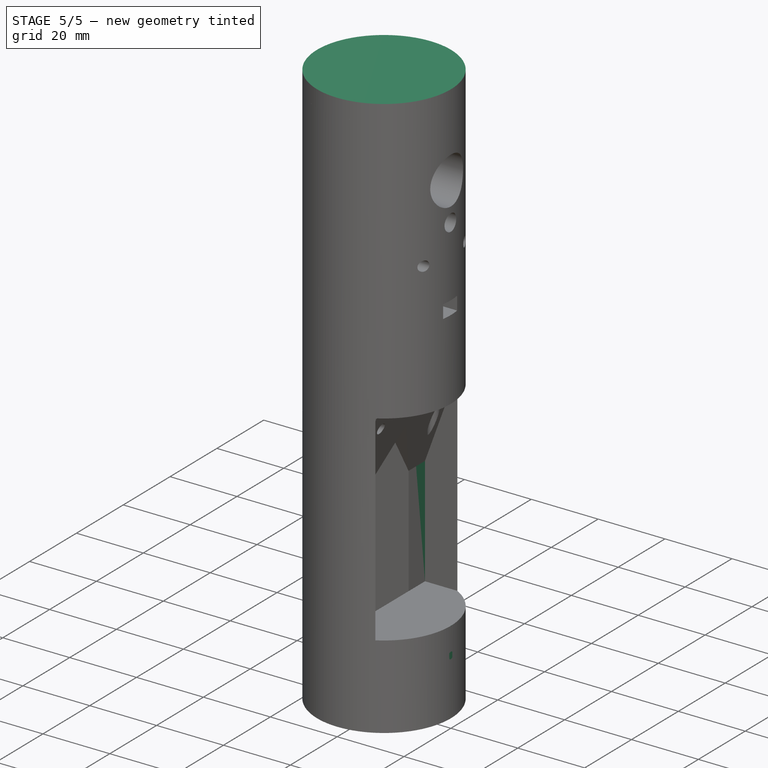
[diagram: stage 5 of 5 — iso view after this stage's code; geometry added in this stage tinted green]
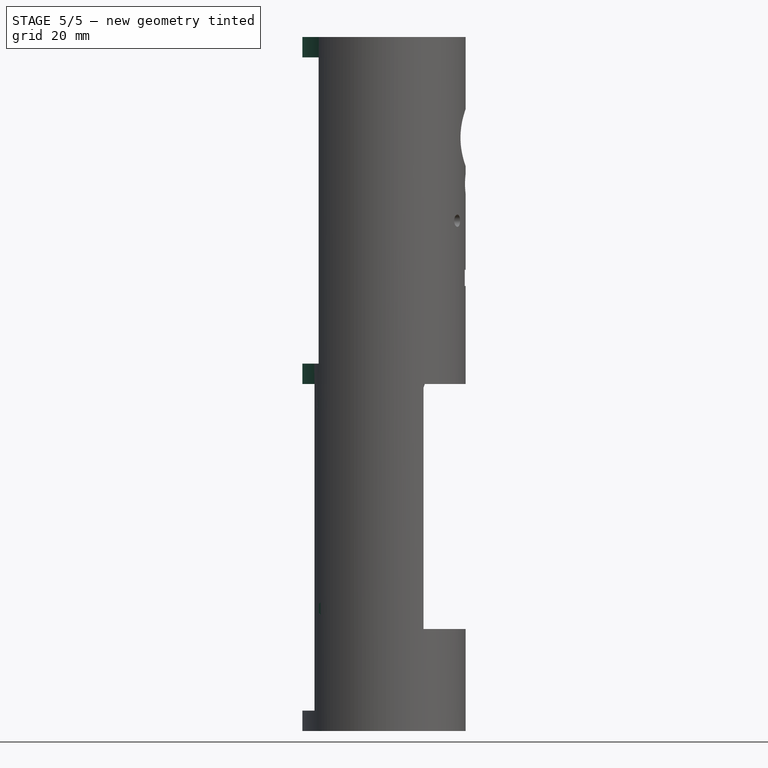
[diagram: stage 5 of 5 — front view after this stage's code; geometry added in this stage tinted green]
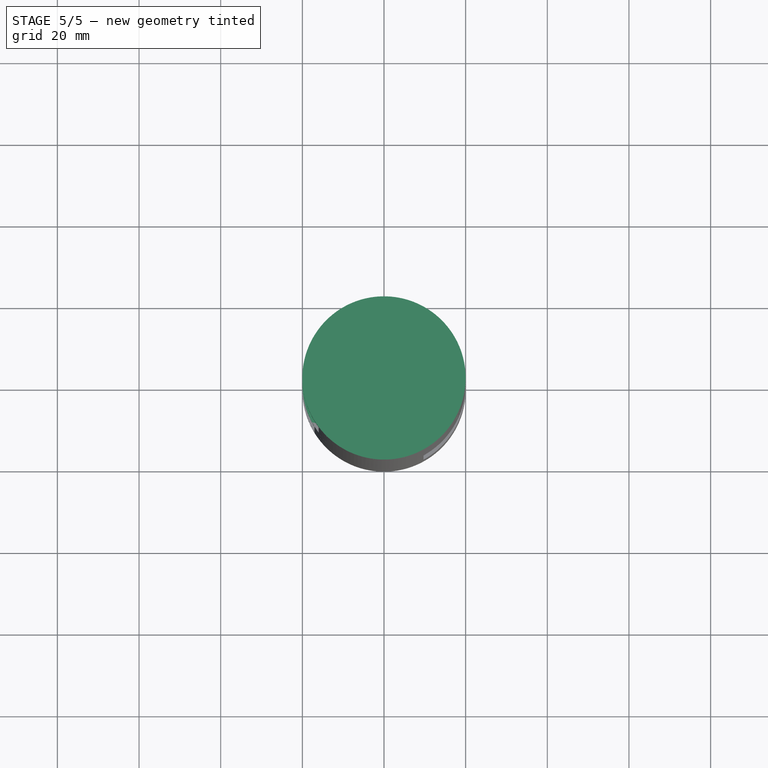
[diagram: stage 5 of 5 — top view after this stage's code; geometry added in this stage tinted green]
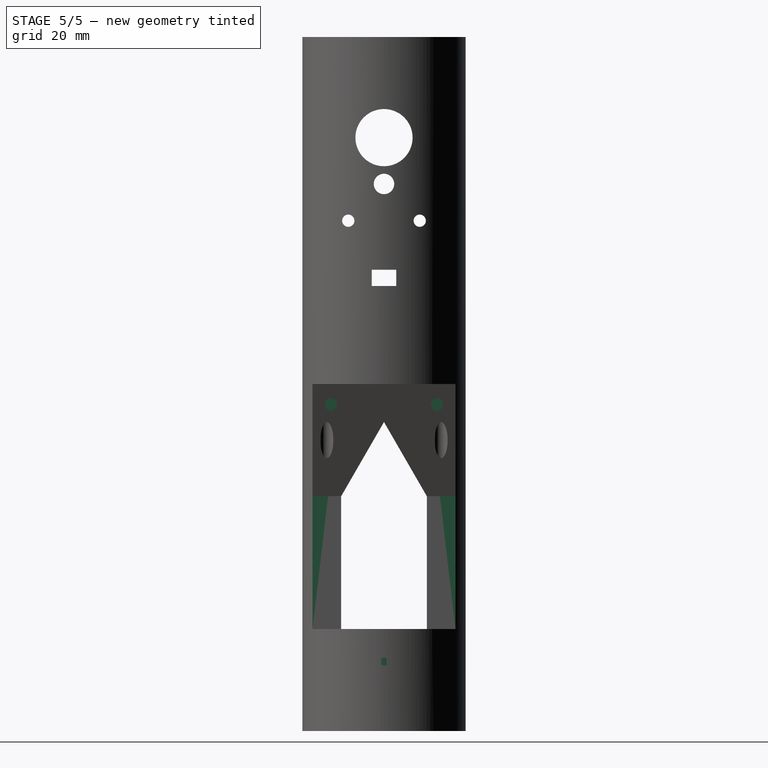
[diagram: stage 5 of 5 — right view after this stage's code; geometry added in this stage tinted green]
FEATURE [Sketcher::SketchObject] Sketch  label="persegixy"
  MapMode = 5
  Support = -> [XY_Plane]
  sketch-geometry (4):
    g0: LineSegment StartX=-17.0798 StartY=8.27511 StartZ=0 EndX=17.0798 EndY=8.27511 EndZ=0
    g1: LineSegment StartX=17.0798 StartY=8.27511 StartZ=0 EndX=17.0798 EndY=-8.27511 EndZ=0
    g2: LineSegment StartX=17.0798 StartY=-8.27511 StartZ=0 EndX=-17.0798 EndY=-8.27511 EndZ=0
    g3: LineSegment StartX=-17.0798 StartY=-8.27511 StartZ=0 EndX=-17.0798 EndY=8.27511 EndZ=0
  constraints (8):
    c: Coincident(g0,g1)
    c: Coincident(g1,g2)
    c: Coincident(g2,g3)
    c: Coincident(g3,g0)
    c: Horizontal(g0)
    c: Vertical(g3)
    c: Symmetric(g0,g1,g-1)
    c: Symmetric(g2,g1,g-2)
FEATURE [Sketcher::SketchObject] Sketch001
  MapMode = 5
  Support = -> [XY_Plane]
  sketch-geometry (1):
    g0: Circle CenterX=0 CenterY=0 CenterZ=0 NormalX=0 NormalY=0 NormalZ=1 AngleXU=0 Radius=20
  constraints (2):
    c: Coincident(g0,g-1)
    c: Diameter(g0) = 40
FEATURE [PartDesign::Pad] Pad  label="mainbody"
  Length = 170
  Length2 = 100
  Profile = -> Sketch001
  Type = 0
FEATURE [Sketcher::SketchObject] Sketch002
  MapMode = 5
  Placement = pos=(0,0,0) rot=(0.57735,0.57735,0.57735;2.0944rad)
  Support = -> [YZ_Plane]
  sketch-geometry (4):
    g0: LineSegment StartX=-10.5 StartY=85 StartZ=0 EndX=10.5 EndY=85 EndZ=0
    g1: LineSegment StartX=10.5 StartY=85 StartZ=0 EndX=10.5 EndY=5 EndZ=0
    g2: LineSegment StartX=10.5 StartY=5 StartZ=0 EndX=-10.5 EndY=5 EndZ=0
    g3: LineSegment StartX=-10.5 StartY=5 StartZ=0 EndX=-10.5 EndY=85 EndZ=0
  constraints (11):
    c: Coincident(g0,g1)
    c: Coincident(g1,g2)
    c: Coincident(g2,g3)
    c: Coincident(g3,g0)
    c: Horizontal(g0)
    c: Vertical(g1)
    c: Vertical(g3)
    c: DistanceX(g0,g0) = 21
    c: DistanceY(g1,g1) = 80
    c: Symmetric(g1,g2,g-2)
    c: DistanceY(g-1,g1) = 5
FEATURE [PartDesign::Pocket] Pocket  label="pocketbattery"
  BaseFeature = -> Pad
  Length = 5
  Length2 = 100
  Profile = -> Sketch002
  Type = 1
FEATURE [Sketcher::SketchObject] Sketch003
  MapMode = 5
  Placement = pos=(0,0,0) rot=(0.57735,0.57735,0.57735;2.0944rad)
  Support = -> [YZ_Plane]
  sketch-geometry (4):
    g0: LineSegment StartX=-17.5 StartY=25 StartZ=0 EndX=17.5 EndY=25 EndZ=0
    g1: LineSegment StartX=17.5 StartY=25 StartZ=0 EndX=17.5 EndY=85 EndZ=0
    g2: LineSegment StartX=17.5 StartY=85 StartZ=0 EndX=-17.5 EndY=85 EndZ=0
    g3: LineSegment StartX=-17.5 StartY=85 StartZ=0 EndX=-17.5 EndY=25 EndZ=0
  constraints (11):
    c: Coincident(g0,g1)
    c: Coincident(g1,g2)
    c: Coincident(g2,g3)
    c: Coincident(g3,g0)
    c: Horizontal(g2)
    c: Vertical(g1)
    c: Vertical(g3)
    c: Symmetric(g0,g0,g-2)
    c: DistanceX(g0,g0) = 35
    c: DistanceY(g3,g3) = 60
    c: DistanceY(g-1,g1) = 85
FEATURE [PartDesign::Pocket] Pocket001  label="pocketelectronics"
  BaseFeature = -> Pocket
  Length = 5
  Length2 = 100
  Profile = -> Sketch003
  Reversed = true
  Type = 1
FEATURE [Sketcher::SketchObject] Sketch004
  MapMode = 5
  Placement = pos=(0,0,0) rot=(0.57735,0.57735,0.57735;2.0944rad)
  Support = -> [YZ_Plane]
  sketch-geometry (4):
    g0: LineSegment StartX=-12 StartY=90 StartZ=0 EndX=12 EndY=90 EndZ=0
    g1: LineSegment StartX=12 StartY=90 StartZ=0 EndX=12 EndY=165 EndZ=0
    g2: LineSegment StartX=12 StartY=165 StartZ=0 EndX=-12 EndY=165 EndZ=0
    g3: LineSegment StartX=-12 StartY=165 StartZ=0 EndX=-12 EndY=90 EndZ=0
  constraints (11):
    c: Coincident(g0,g1)
    c: Coincident(g1,g2)
    c: Coincident(g2,g3)
    c: Coincident(g3,g0)
    c: Horizontal(g0)
    c: Vertical(g1)
    c: Vertical(g3)
    c: Symmetric(g1,g2,g-2)
    c: DistanceX(g2,g2) = 24
    c: DistanceY(g1,g1) = 75
    c: DistanceY(g-1,g0) = 90
FEATURE [PartDesign::Pocket] Pocket002  label="pocketmotor"
  BaseFeature = -> Pocket001
  Length = 5
  Length2 = 100
  Profile = -> Sketch004
  Type = 1
FEATURE [Sketcher::SketchObject] Sketch005
  MapMode = 5
  Placement = pos=(-3e-16,0,0) rot=(-0.57735,0.57735,0.57735;4.18879rad)
  Support = -> [Pocket002]
  sketch-geometry (9):
    g0: Circle CenterX=8.75 CenterY=125 CenterZ=0 NormalX=0 NormalY=0 NormalZ=1 AngleXU=0 Radius=1.5
    g1: Circle CenterX=-8.75 CenterY=125 CenterZ=0 NormalX=0 NormalY=0 NormalZ=1 AngleXU=0 Radius=1.5
    g2: LineSegment [constr] StartX=26 StartY=90 StartZ=0 EndX=26 EndY=0 EndZ=0
    g3: Circle CenterX=0 CenterY=145.35 CenterZ=0 NormalX=0 NormalY=0 NormalZ=1 AngleXU=0 Radius=7
    g4: Circle CenterX=0 CenterY=134 CenterZ=0 NormalX=0 NormalY=0 NormalZ=1 AngleXU=0 Radius=2.5
    g5: LineSegment StartX=-3 StartY=113 StartZ=0 EndX=3 EndY=113 EndZ=0
    g6: LineSegment StartX=3 StartY=113 StartZ=0 EndX=3 EndY=109 EndZ=0
    g7: LineSegment StartX=3 StartY=109 StartZ=0 EndX=-3 EndY=109 EndZ=0
    g8: LineSegment StartX=-3 StartY=109 StartZ=0 EndX=-3 EndY=113 EndZ=0
  constraints (25):
    c: Symmetric(g1,g0,g-2)
    c: Diameter(g1) = 3
    c: Equal(g1,g0)
    c: DistanceX(g1,g0) = 17.5
    c: Vertical(g2)
    c: PointOnObject(g2,g-1)
    c: DistanceY(g2,g2) = 90
    c: DistanceY(g2,g0) = 35
    c: PointOnObject(g3,g-2)
    c: Diameter(g3) = 14
    c: DistanceY(g0,g3) = 20.35
    c: PointOnObject(g4,g-2)
    c: Diameter(g4) = 5
    c: DistanceY(g0,g4) = 9
    c: Coincident(g5,g6)
    c: Coincident(g6,g7)
    c: Coincident(g7,g8)
    c: Coincident(g8,g5)
    c: Horizontal(g7)
    c: Vertical(g6)
    c: Vertical(g8)
    c: Symmetric(g5,g5,g-2)
    c: DistanceX(g5,g5) = 6
    c: DistanceY(g6,g6) = 4
    c: DistanceY(g5,g0) = 12
FEATURE [PartDesign::Pocket] Pocket003  label="pocketmotorscrew"
  BaseFeature = -> Pocket002
  Length = 5
  Length2 = 100
  Profile = -> Sketch005
  Type = 1
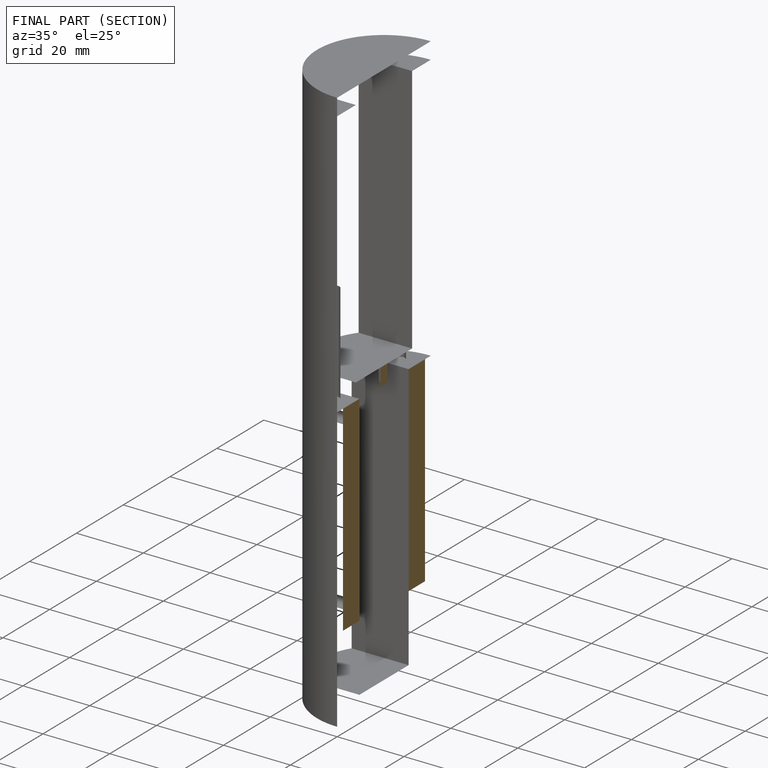
[diagram: finished part — half-section view (interior)]
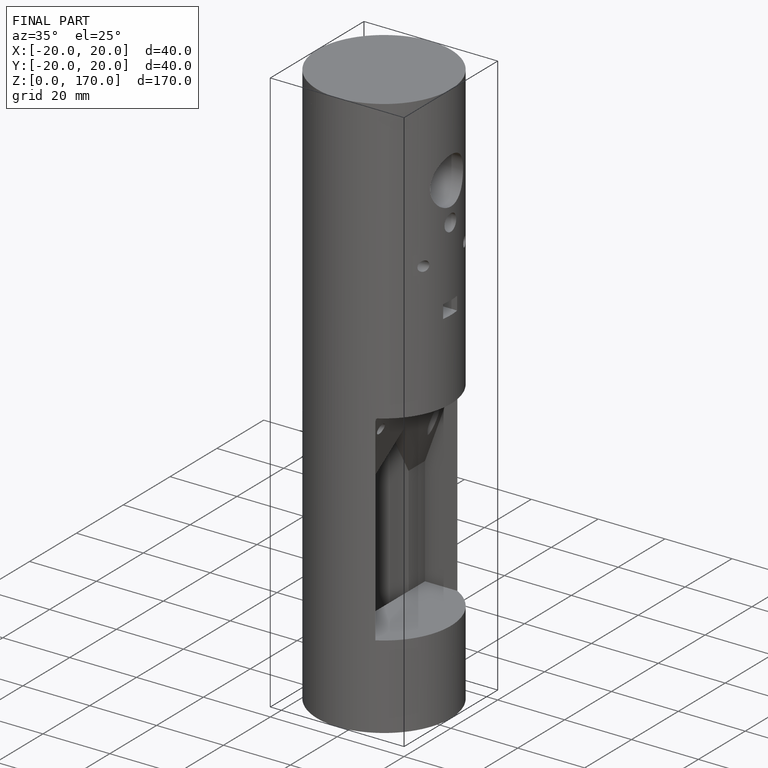
[diagram: finished part — iso view with bounding-box wireframe]
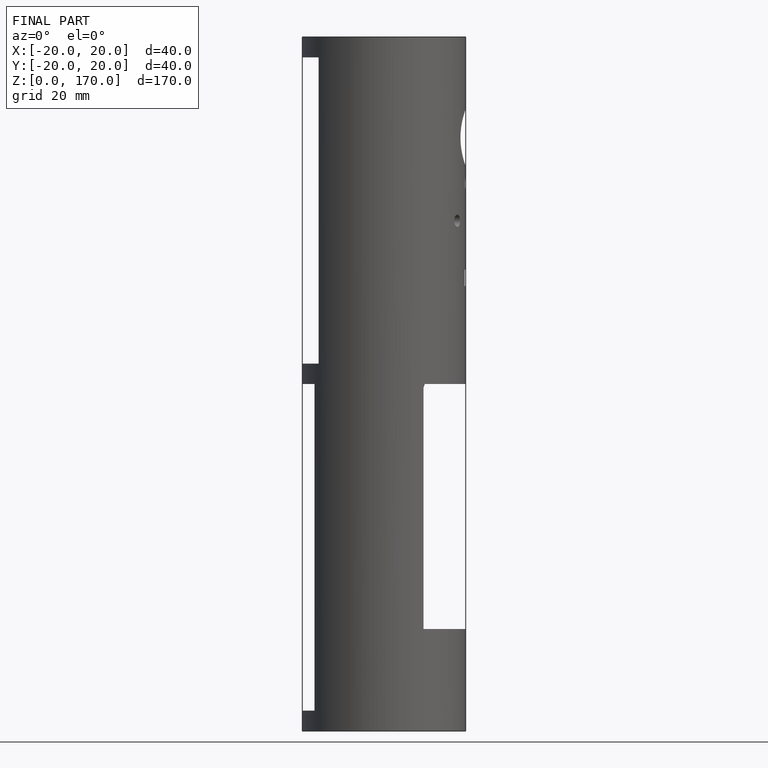
[diagram: finished part — front view with bounding-box wireframe]
